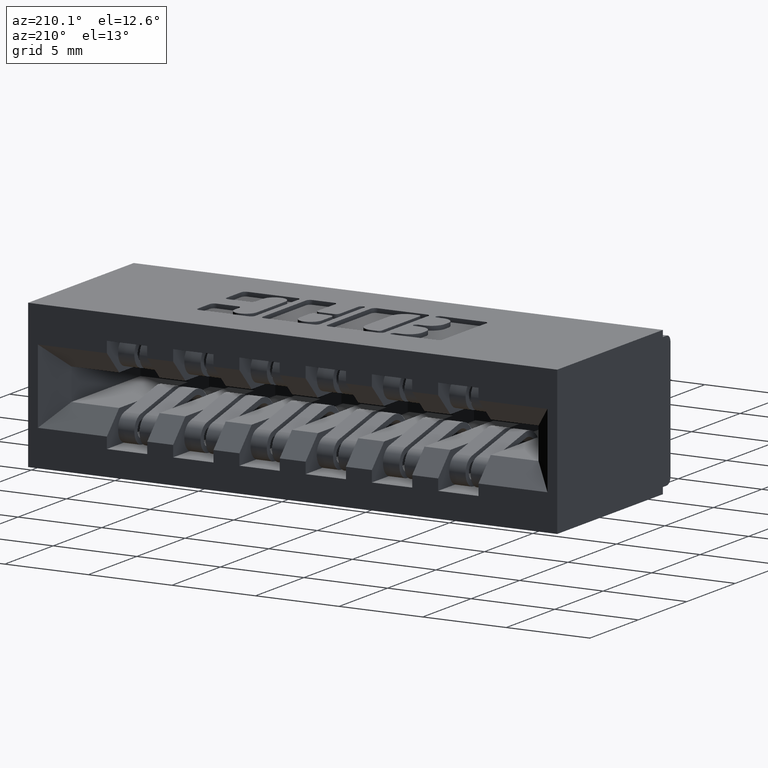
[diagram: clean part render]
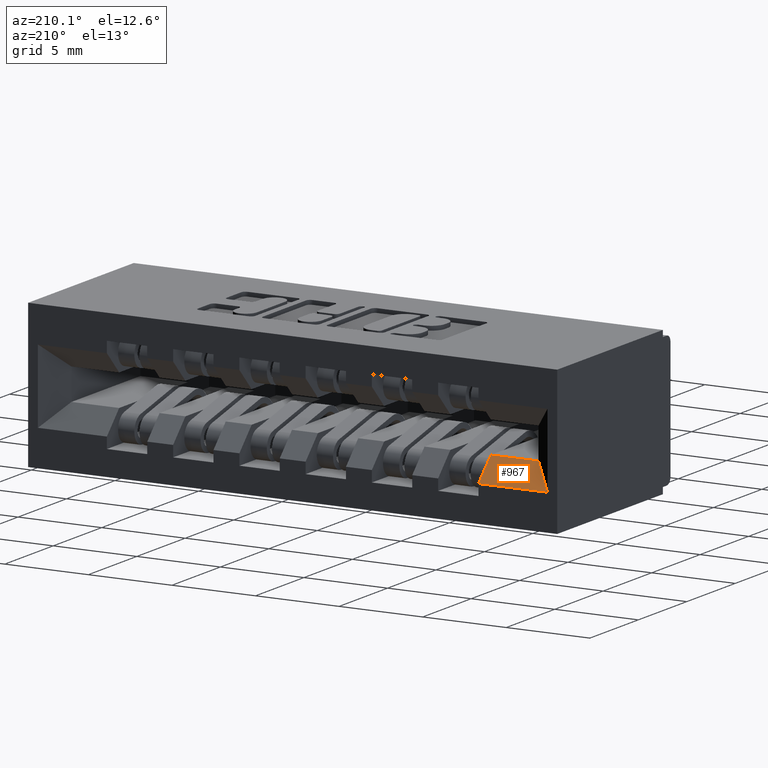
[diagram: same view with one face highlighted and labeled with its STEP entity id]
A machine part, auxiliary view. The second image highlights one B-rep face of the part: STEP entity #967.
In plain terms, the highlighted planar face has unit normal (0, -0.7071, -0.7071).
Its self-contained STEP definition (entity closure, byte-faithful):
#381 = EDGE_CURVE ( 'NONE', #528, #4614, #10091, .T. ) ;
#419 = EDGE_CURVE ( 'NONE', #9513, #4690, #1353, .T. ) ;
#528 = VERTEX_POINT ( 'NONE', #8532 ) ;
#556 = DIRECTION ( 'NONE',  ( 0.0000000000000000000, -0.7071067811865494600, -0.7071067811865455700 ) ) ;
#967 = ADVANCED_FACE ( 'NONE', ( #6327 ), #6931, .F. ) ;
#1353 = LINE ( 'NONE', #1861, #2268 ) ;
#1861 = CARTESIAN_POINT ( 'NONE',  ( 0.0000000000000000000, 0.4600000000000000200, -0.2585000000000003400 ) ) ;
#2268 = VECTOR ( 'NONE', #3506, 39.37007874015748100 ) ;
#2336 = VECTOR ( 'NONE', #4459, 39.37007874015748100 ) ;
#2360 = ORIENTED_EDGE ( 'NONE', *, *, #3325, .T. ) ;
#3069 = AXIS2_PLACEMENT_3D ( 'NONE', #5374, #556, #7955 ) ;
#3098 = LINE ( 'NONE', #7737, #2336 ) ;
#3260 = EDGE_CURVE ( 'NONE', #4690, #528, #3484, .T. ) ;
#3325 = EDGE_CURVE ( 'NONE', #9513, #4614, #3098, .T. ) ;
#3484 = LINE ( 'NONE', #6640, #9640 ) ;
#3506 = DIRECTION ( 'NONE',  ( 1.000000000000000000, 0.0000000000000000000, 0.0000000000000000000 ) ) ;
#4145 = DIRECTION ( 'NONE',  ( -1.000000000000000000, 0.0000000000000000000, 0.0000000000000000000 ) ) ;
#4182 = CARTESIAN_POINT ( 'NONE',  ( 0.3710000000000013800, 0.4100000000000002500, -0.2085000000000003500 ) ) ;
#4459 = DIRECTION ( 'NONE',  ( 0.5773502691896268400, -0.5773502691896236200, 0.5773502691896268400 ) ) ;
#4614 = VERTEX_POINT ( 'NONE', #9000 ) ;
#4690 = VERTEX_POINT ( 'NONE', #5885 ) ;
#5374 = CARTESIAN_POINT ( 'NONE',  ( 0.3710000000000013800, 0.4100000000000002500, -0.2085000000000003500 ) ) ;
#5885 = CARTESIAN_POINT ( 'NONE',  ( 0.4835000000000013200, 0.4600000000000000200, -0.2585000000000003400 ) ) ;
#6327 = FACE_OUTER_BOUND ( 'NONE', #9915, .T. ) ;
#6640 = CARTESIAN_POINT ( 'NONE',  ( 0.4835000000000013200, 0.4600000000000000200, -0.2585000000000003400 ) ) ;
#6931 = PLANE ( 'NONE',  #3069 ) ;
#7358 = CARTESIAN_POINT ( 'NONE',  ( 0.3210000000000014000, 0.4600000000000000200, -0.2585000000000003400 ) ) ;
#7737 = CARTESIAN_POINT ( 'NONE',  ( 0.3710000000000013800, 0.4100000000000002500, -0.2085000000000003500 ) ) ;
#7899 = VECTOR ( 'NONE', #4145, 39.37007874015748100 ) ;
#7955 = DIRECTION ( 'NONE',  ( 0.0000000000000000000, 0.7071067811865454600, -0.7071067811865493500 ) ) ;
#8532 = CARTESIAN_POINT ( 'NONE',  ( 0.4835000000000013200, 0.4100000000000002500, -0.2085000000000003500 ) ) ;
#9000 = CARTESIAN_POINT ( 'NONE',  ( 0.3710000000000013800, 0.4100000000000002500, -0.2085000000000003500 ) ) ;
#9152 = ORIENTED_EDGE ( 'NONE', *, *, #381, .F. ) ;
#9513 = VERTEX_POINT ( 'NONE', #7358 ) ;
#9640 = VECTOR ( 'NONE', #9984, 39.37007874015748900 ) ;
#9915 = EDGE_LOOP ( 'NONE', ( #9152, #10068, #10521, #2360 ) ) ;
#9984 = DIRECTION ( 'NONE',  ( 0.0000000000000000000, -0.7071067811865454600, 0.7071067811865493500 ) ) ;
#10068 = ORIENTED_EDGE ( 'NONE', *, *, #3260, .F. ) ;
#10091 = LINE ( 'NONE', #4182, #7899 ) ;
#10521 = ORIENTED_EDGE ( 'NONE', *, *, #419, .F. ) ;